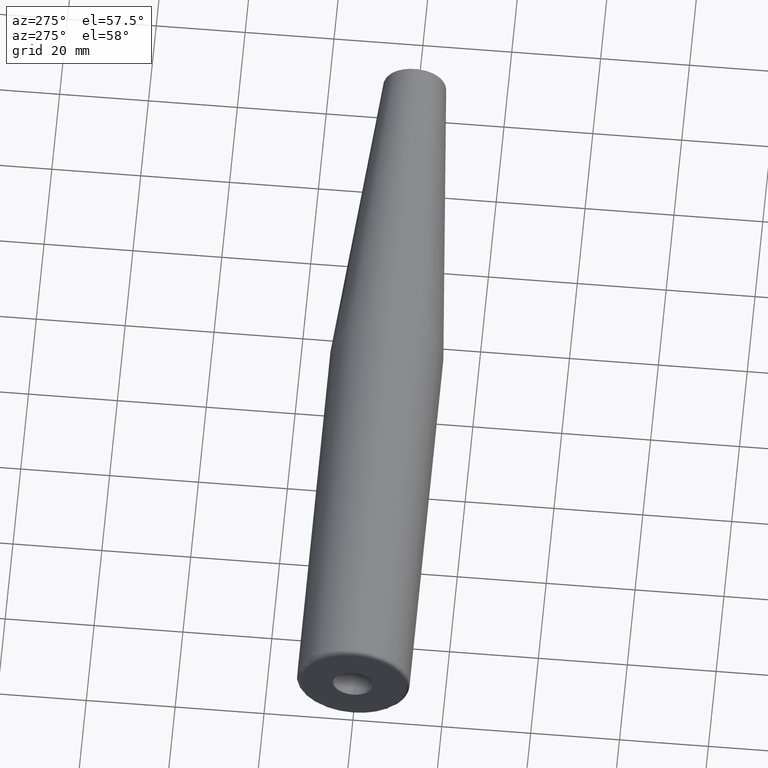
[diagram: clean part render]
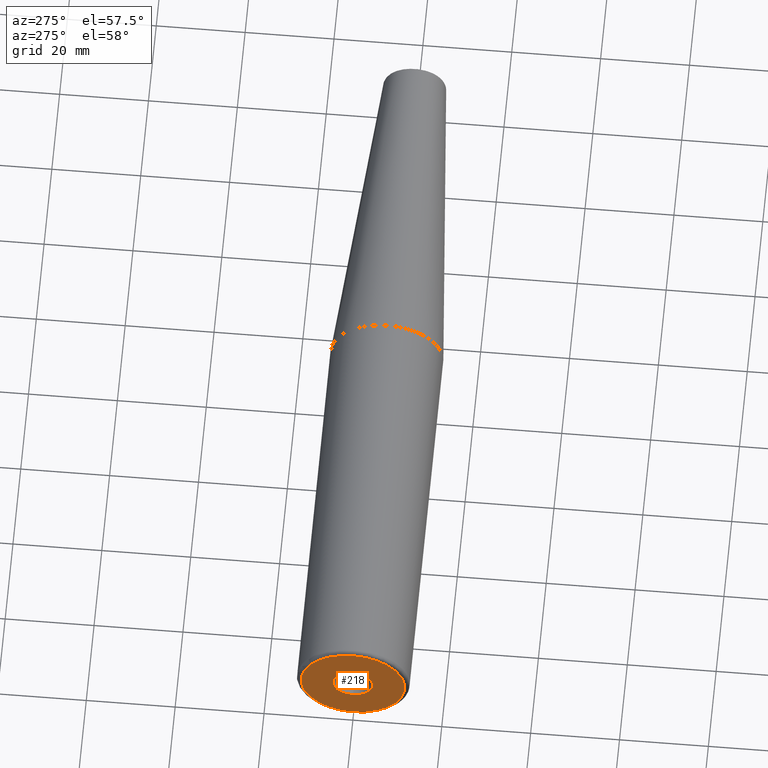
[diagram: same view with one face highlighted and labeled with its STEP entity id]
A machine part, auxiliary view. The second image highlights one B-rep face of the part: STEP entity #218.
In plain terms, the highlighted planar face has unit normal (-1, 0, 0).
Its self-contained STEP definition (entity closure, byte-faithful):
#15=FACE_BOUND('',#51,.T.);
#19=PLANE('',#268);
#35=FACE_OUTER_BOUND('',#50,.T.);
#50=EDGE_LOOP('',(#179));
#51=EDGE_LOOP('',(#180));
#86=CIRCLE('',#260,4.5);
#87=CIRCLE('',#262,11.7);
#106=VERTEX_POINT('',#387);
#107=VERTEX_POINT('',#391);
#128=EDGE_CURVE('',#106,#106,#86,.T.);
#130=EDGE_CURVE('',#107,#107,#87,.T.);
#179=ORIENTED_EDGE('',*,*,#130,.F.);
#180=ORIENTED_EDGE('',*,*,#128,.T.);
#218=ADVANCED_FACE('',(#35,#15),#19,.T.);
#260=AXIS2_PLACEMENT_3D('',#388,#312,#313);
#262=AXIS2_PLACEMENT_3D('',#392,#317,#318);
#268=AXIS2_PLACEMENT_3D('',#402,#330,#331);
#312=DIRECTION('center_axis',(1.,0.,0.));
#313=DIRECTION('ref_axis',(0.,0.,1.));
#317=DIRECTION('center_axis',(1.,0.,0.));
#318=DIRECTION('ref_axis',(0.,-1.,-1.83697019872103E-16));
#330=DIRECTION('center_axis',(-1.,0.,0.));
#331=DIRECTION('ref_axis',(0.,0.,1.));
#387=CARTESIAN_POINT('',(-160.,-5.51091059616309E-16,-4.5));
#388=CARTESIAN_POINT('Origin',(-160.,0.,0.));
#391=CARTESIAN_POINT('',(-160.,-1.4328367550024E-15,-11.7));
#392=CARTESIAN_POINT('Origin',(-160.,0.,0.));
#402=CARTESIAN_POINT('Origin',(-160.,0.,0.));